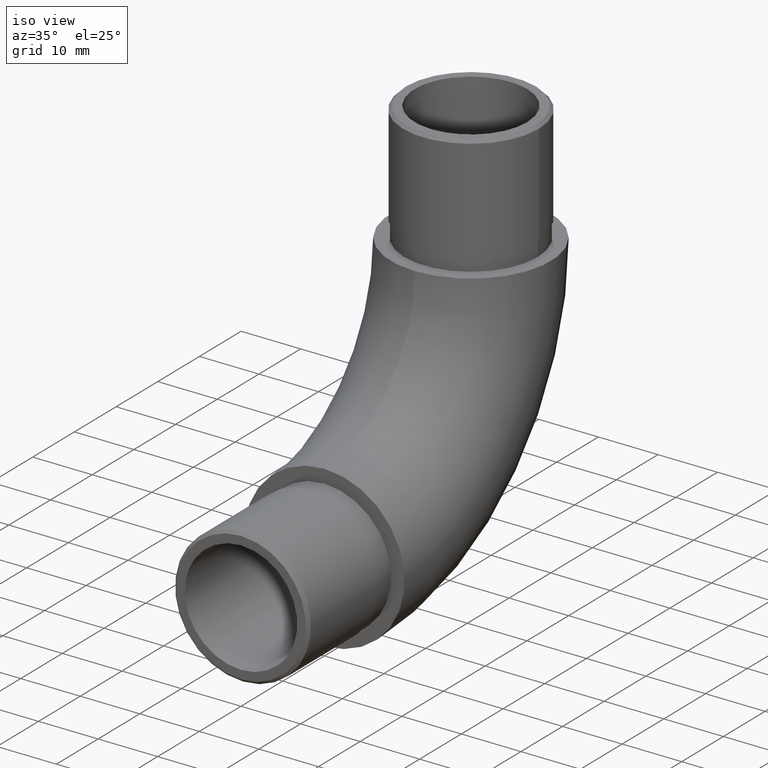
[diagram: clean part render]
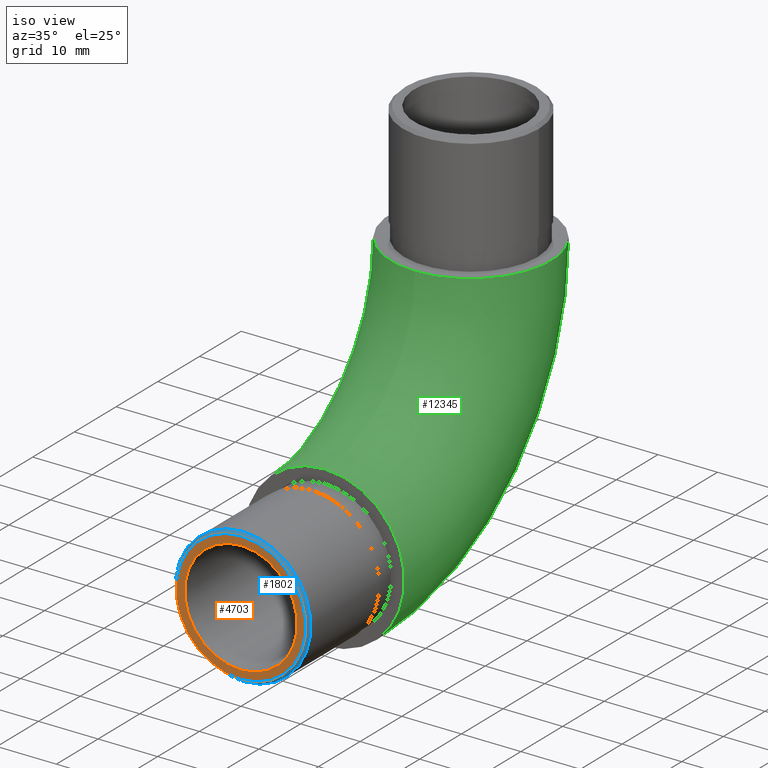
[diagram: same view with three faces highlighted in distinct colors, each labeled with its STEP entity id]
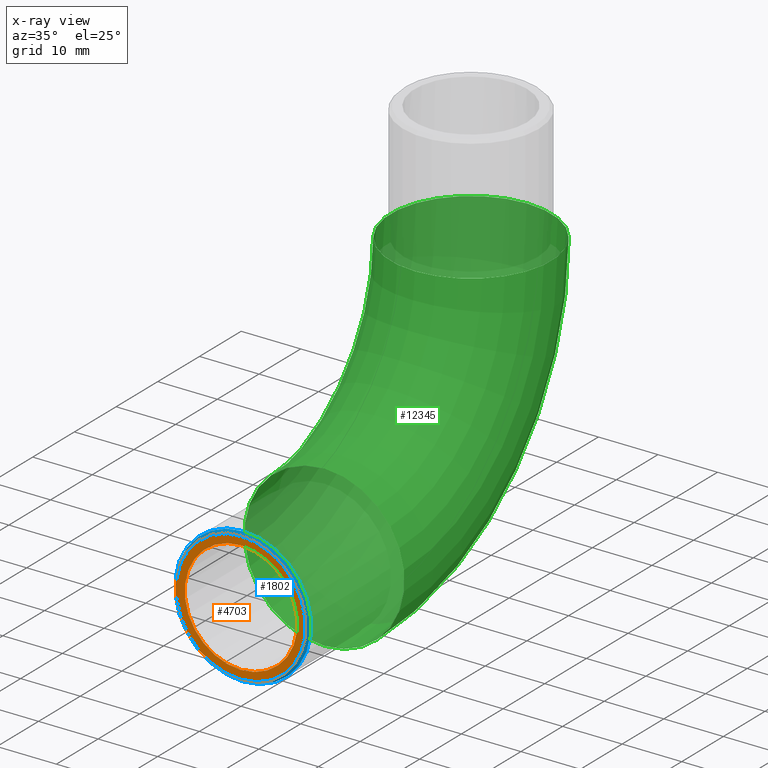
[diagram: x-ray of the same camera — body ghosted, the three highlighted faces saturated]
A machine part, iso view with three faces highlighted in distinct colors.
The next image is the same camera in x-ray (body ghosted, the three faces saturated) — at least one of them is partly hidden behind the body in this view.
Their STEP definitions:

[orange] entity #4703 — the highlighted planar face has unit normal (0, -1, 0).
#249 = DIRECTION ( 'NONE',  ( 0.0000000000000000000, 0.0000000000000000000, -1.000000000000000000 ) ) ;
#590 = FACE_BOUND ( 'NONE', #1796, .T. ) ;
#1261 = ORIENTED_EDGE ( 'NONE', *, *, #7746, .F. ) ;
#1394 = DIRECTION ( 'NONE',  ( 0.0000000000000000000, -1.000000000000000000, 0.0000000000000000000 ) ) ;
#1790 = CARTESIAN_POINT ( 'NONE',  ( 0.0000000000000000000, -20.00000000000000000, 4.000000000000003600 ) ) ;
#1796 = EDGE_LOOP ( 'NONE', ( #1261 ) ) ;
#1965 = VERTEX_POINT ( 'NONE', #11763 ) ;
#1970 = AXIS2_PLACEMENT_3D ( 'NONE', #3229, #1394, #249 ) ;
#2553 = CARTESIAN_POINT ( 'NONE',  ( 0.0000000000000000000, -20.00000000000000000, 13.45000000000000300 ) ) ;
#2711 = AXIS2_PLACEMENT_3D ( 'NONE', #2553, #5580, #7528 ) ;
#3229 = CARTESIAN_POINT ( 'NONE',  ( 0.0000000000000000000, -20.00000000000000000, 13.45000000000000300 ) ) ;
#3989 = EDGE_CURVE ( 'NONE', #1965, #1965, #4680, .T. ) ;
#4210 = FACE_OUTER_BOUND ( 'NONE', #8106, .T. ) ;
#4324 = VERTEX_POINT ( 'NONE', #1790 ) ;
#4680 = CIRCLE ( 'NONE', #1970, 10.89999999999999300 ) ;
#4703 = ADVANCED_FACE ( 'NONE', ( #4210, #590 ), #12570, .T. ) ;
#5580 = DIRECTION ( 'NONE',  ( 0.0000000000000000000, -1.000000000000000000, 0.0000000000000000000 ) ) ;
#5926 = ORIENTED_EDGE ( 'NONE', *, *, #3989, .T. ) ;
#7528 = DIRECTION ( 'NONE',  ( 0.0000000000000000000, -0.0000000000000000000, -1.000000000000000000 ) ) ;
#7746 = EDGE_CURVE ( 'NONE', #4324, #4324, #11168, .T. ) ;
#7890 = AXIS2_PLACEMENT_3D ( 'NONE', #9288, #10209, #9213 ) ;
#8106 = EDGE_LOOP ( 'NONE', ( #5926 ) ) ;
#9213 = DIRECTION ( 'NONE',  ( 0.0000000000000000000, 0.0000000000000000000, -1.000000000000000000 ) ) ;
#9288 = CARTESIAN_POINT ( 'NONE',  ( 0.0000000000000000000, -20.00000000000000000, 13.45000000000000300 ) ) ;
#10209 = DIRECTION ( 'NONE',  ( 0.0000000000000000000, -1.000000000000000000, 0.0000000000000000000 ) ) ;
#11168 = CIRCLE ( 'NONE', #7890, 9.449999999999999300 ) ;
#11763 = CARTESIAN_POINT ( 'NONE',  ( 0.0000000000000000000, -20.00000000000000000, 2.550000000000010500 ) ) ;
#12570 = PLANE ( 'NONE',  #2711 ) ;

[blue] entity #1802 — the highlighted conical surface has half-angle 45 deg.
#249 = DIRECTION ( 'NONE',  ( 0.0000000000000000000, 0.0000000000000000000, -1.000000000000000000 ) ) ;
#1154 = DIRECTION ( 'NONE',  ( 0.0000000000000000000, 0.0000000000000000000, 1.000000000000000000 ) ) ;
#1179 = ORIENTED_EDGE ( 'NONE', *, *, #3584, .F. ) ;
#1394 = DIRECTION ( 'NONE',  ( 0.0000000000000000000, -1.000000000000000000, 0.0000000000000000000 ) ) ;
#1712 = EDGE_LOOP ( 'NONE', ( #1179 ) ) ;
#1802 = ADVANCED_FACE ( 'NONE', ( #6802, #12715 ), #12092, .T. ) ;
#1965 = VERTEX_POINT ( 'NONE', #11763 ) ;
#1970 = AXIS2_PLACEMENT_3D ( 'NONE', #3229, #1394, #249 ) ;
#2302 = DIRECTION ( 'NONE',  ( 0.0000000000000000000, 0.0000000000000000000, -1.000000000000000000 ) ) ;
#3229 = CARTESIAN_POINT ( 'NONE',  ( 0.0000000000000000000, -20.00000000000000000, 13.45000000000000300 ) ) ;
#3434 = DIRECTION ( 'NONE',  ( 0.0000000000000000000, 1.000000000000000000, 0.0000000000000000000 ) ) ;
#3584 = EDGE_CURVE ( 'NONE', #5734, #5734, #11251, .T. ) ;
#3989 = EDGE_CURVE ( 'NONE', #1965, #1965, #4680, .T. ) ;
#4272 = CARTESIAN_POINT ( 'NONE',  ( 0.0000000000000000000, -20.00000000000000000, 13.45000000000000300 ) ) ;
#4680 = CIRCLE ( 'NONE', #1970, 10.89999999999999300 ) ;
#4740 = AXIS2_PLACEMENT_3D ( 'NONE', #4272, #11247, #1154 ) ;
#5489 = EDGE_LOOP ( 'NONE', ( #8872 ) ) ;
#5734 = VERTEX_POINT ( 'NONE', #6897 ) ;
#6802 = FACE_OUTER_BOUND ( 'NONE', #1712, .T. ) ;
#6897 = CARTESIAN_POINT ( 'NONE',  ( 0.0000000000000000000, -19.49999999999997200, 2.050000000000003400 ) ) ;
#8872 = ORIENTED_EDGE ( 'NONE', *, *, #3989, .F. ) ;
#10066 = AXIS2_PLACEMENT_3D ( 'NONE', #10274, #3434, #2302 ) ;
#10274 = CARTESIAN_POINT ( 'NONE',  ( 0.0000000000000000000, -19.49999999999997200, 13.45000000000000300 ) ) ;
#11247 = DIRECTION ( 'NONE',  ( 0.0000000000000000000, 1.000000000000000000, 0.0000000000000000000 ) ) ;
#11251 = CIRCLE ( 'NONE', #10066, 11.40000000000000000 ) ;
#11763 = CARTESIAN_POINT ( 'NONE',  ( 0.0000000000000000000, -20.00000000000000000, 2.550000000000010500 ) ) ;
#12092 = CONICAL_SURFACE ( 'NONE', #4740, 10.89999999999999300, 0.7853981633974275200 ) ;
#12715 = FACE_BOUND ( 'NONE', #5489, .T. ) ;

[green] entity #12345 — the highlighted toroidal blend (fillet) surface has major radius 35.15 mm and minor (blend) radius 13.45 mm.
#115 = EDGE_LOOP ( 'NONE', ( #268 ) ) ;
#268 = ORIENTED_EDGE ( 'NONE', *, *, #7295, .F. ) ;
#415 = FACE_OUTER_BOUND ( 'NONE', #8755, .T. ) ;
#1095 = CARTESIAN_POINT ( 'NONE',  ( 0.0000000000000000000, -6.938893903907228400E-015, 48.60000000000000100 ) ) ;
#1426 = CARTESIAN_POINT ( 'NONE',  ( 0.0000000000000000000, 0.0000000000000000000, 13.45000000000000100 ) ) ;
#1628 = ORIENTED_EDGE ( 'NONE', *, *, #7276, .T. ) ;
#2462 = DIRECTION ( 'NONE',  ( 0.0000000000000000000, 0.0000000000000000000, 1.000000000000000000 ) ) ;
#3072 = FACE_OUTER_BOUND ( 'NONE', #115, .T. ) ;
#3361 = AXIS2_PLACEMENT_3D ( 'NONE', #1095, #12246, #10211 ) ;
#3425 = DIRECTION ( 'NONE',  ( 0.0000000000000000000, 1.000000000000000000, 0.0000000000000000000 ) ) ;
#4154 = VERTEX_POINT ( 'NONE', #9686 ) ;
#5493 = CARTESIAN_POINT ( 'NONE',  ( 0.0000000000000000000, 35.14999999999999100, 48.60000000000000100 ) ) ;
#6206 = CIRCLE ( 'NONE', #9742, 13.45000000000000100 ) ;
#6477 = DIRECTION ( 'NONE',  ( 0.0000000000000000000, 6.123233995736766000E-017, 1.000000000000000000 ) ) ;
#6828 = AXIS2_PLACEMENT_3D ( 'NONE', #5493, #6477, #7462 ) ;
#7276 = EDGE_CURVE ( 'NONE', #9299, #9299, #6206, .T. ) ;
#7295 = EDGE_CURVE ( 'NONE', #4154, #4154, #7577, .T. ) ;
#7462 = DIRECTION ( 'NONE',  ( 0.0000000000000000000, -1.000000000000000000, 0.0000000000000000000 ) ) ;
#7577 = CIRCLE ( 'NONE', #6828, 13.45000000000000300 ) ;
#8046 = TOROIDAL_SURFACE ( 'NONE', #3361, 35.14999999999999900, 13.45000000000000100 ) ;
#8755 = EDGE_LOOP ( 'NONE', ( #1628 ) ) ;
#9299 = VERTEX_POINT ( 'NONE', #12852 ) ;
#9686 = CARTESIAN_POINT ( 'NONE',  ( 0.0000000000000000000, 21.69999999999998900, 48.60000000000000100 ) ) ;
#9742 = AXIS2_PLACEMENT_3D ( 'NONE', #1426, #3425, #2462 ) ;
#10211 = DIRECTION ( 'NONE',  ( 0.0000000000000000000, 0.0000000000000000000, 1.000000000000000000 ) ) ;
#12246 = DIRECTION ( 'NONE',  ( -1.000000000000000000, -0.0000000000000000000, -0.0000000000000000000 ) ) ;
#12345 = ADVANCED_FACE ( 'NONE', ( #3072, #415 ), #8046, .T. ) ;
#12852 = CARTESIAN_POINT ( 'NONE',  ( 0.0000000000000000000, 0.0000000000000000000, 26.90000000000000200 ) ) ;